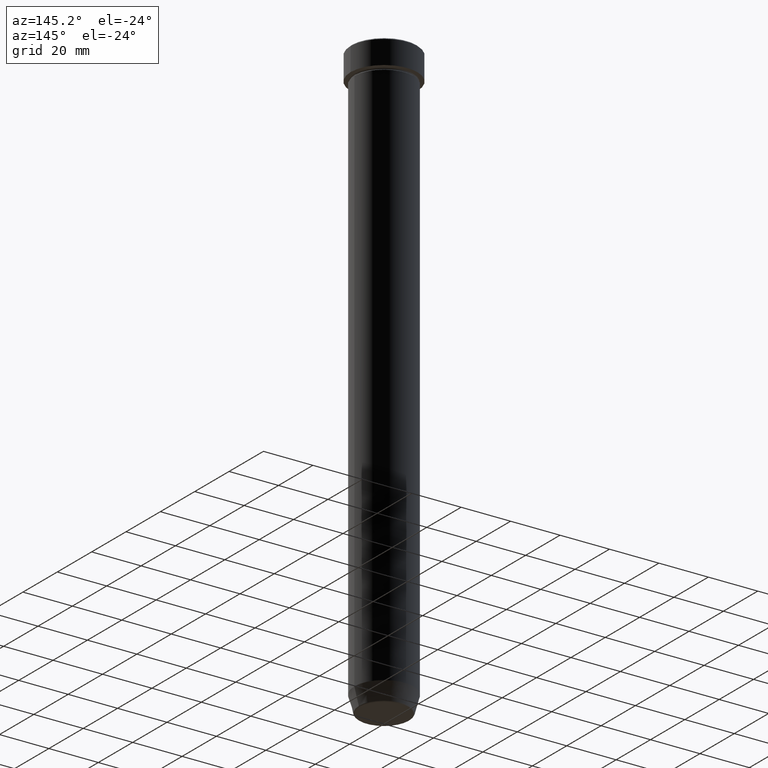
[diagram: clean part render]
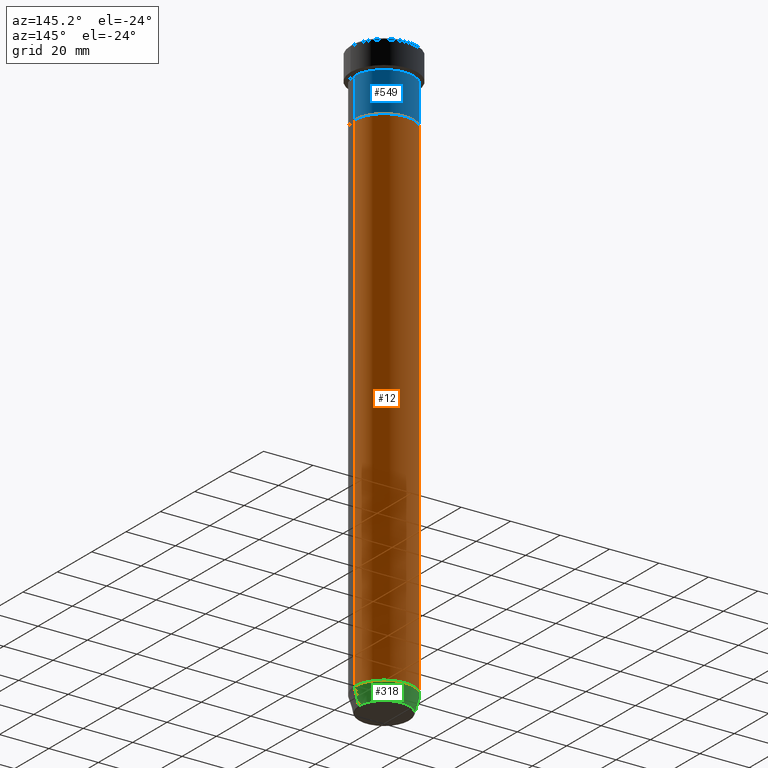
[diagram: same view with three faces highlighted in distinct colors, each labeled with its STEP entity id]
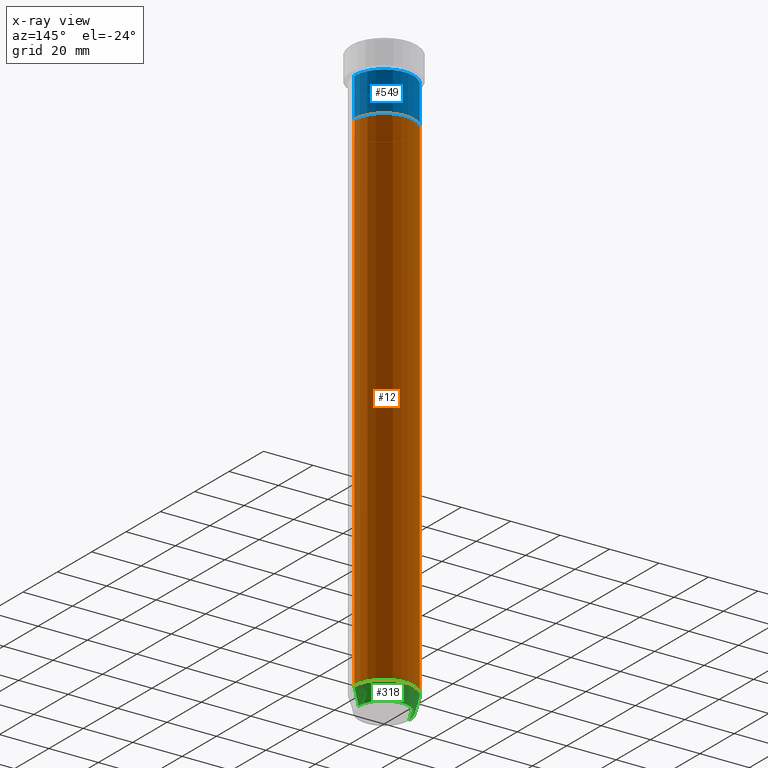
[diagram: x-ray of the same camera — body ghosted, the three highlighted faces saturated]
A machine part, auxiliary view with three faces highlighted in distinct colors.
The next image is the same camera in x-ray (body ghosted, the three faces saturated) — at least one of them is partly hidden behind the body in this view.
Their STEP definitions:

[orange] entity #12 — the highlighted cylindrical surface (edge-blend (fillet) strip) has radius 12 mm, axis along (-0, -0, 1).
#12 = ADVANCED_FACE ( 'NONE', ( #82 ), #408, .T. ) ;
#15 = ORIENTED_EDGE ( 'NONE', *, *, #308, .F. ) ;
#33 = CIRCLE ( 'NONE', #328, 12.00000000000000000 ) ;
#82 = FACE_OUTER_BOUND ( 'NONE', #317, .T. ) ;
#87 = CARTESIAN_POINT ( 'NONE',  ( 0.000000000000000000, 0.000000000000000000, 0.000000000000000000 ) ) ;
#104 = VERTEX_POINT ( 'NONE', #461 ) ;
#108 = LINE ( 'NONE', #209, #547 ) ;
#118 = VECTOR ( 'NONE', #477, 1000.000000000000000 ) ;
#131 = DIRECTION ( 'NONE',  ( -0.000000000000000000, -0.000000000000000000, 1.000000000000000000 ) ) ;
#135 = VERTEX_POINT ( 'NONE', #185 ) ;
#166 = AXIS2_PLACEMENT_3D ( 'NONE', #569, #286, #383 ) ;
#172 = EDGE_CURVE ( 'NONE', #307, #135, #33, .T. ) ;
#176 = AXIS2_PLACEMENT_3D ( 'NONE', #87, #131, #590 ) ;
#185 = CARTESIAN_POINT ( 'NONE',  ( -12.00000000000000000, 1.469576158976823947E-15, -27.00000000000000000 ) ) ;
#209 = CARTESIAN_POINT ( 'NONE',  ( 12.00000000000000000, 0.000000000000000000, 0.000000000000000000 ) ) ;
#219 = ORIENTED_EDGE ( 'NONE', *, *, #264, .T. ) ;
#228 = EDGE_CURVE ( 'NONE', #245, #135, #563, .T. ) ;
#245 = VERTEX_POINT ( 'NONE', #470 ) ;
#264 = EDGE_CURVE ( 'NONE', #104, #245, #350, .T. ) ;
#286 = DIRECTION ( 'NONE',  ( -0.000000000000000000, -0.000000000000000000, 1.000000000000000000 ) ) ;
#294 = DIRECTION ( 'NONE',  ( -0.000000000000000000, -0.000000000000000000, 1.000000000000000000 ) ) ;
#307 = VERTEX_POINT ( 'NONE', #333 ) ;
#308 = EDGE_CURVE ( 'NONE', #104, #307, #108, .T. ) ;
#317 = EDGE_LOOP ( 'NONE', ( #219, #518, #398, #15 ) ) ;
#328 = AXIS2_PLACEMENT_3D ( 'NONE', #458, #330, #512 ) ;
#330 = DIRECTION ( 'NONE',  ( -0.000000000000000000, -0.000000000000000000, 1.000000000000000000 ) ) ;
#333 = CARTESIAN_POINT ( 'NONE',  ( 12.00000000000000000, 0.000000000000000000, -27.00000000000000000 ) ) ;
#350 = CIRCLE ( 'NONE', #166, 12.00000000000000000 ) ;
#383 = DIRECTION ( 'NONE',  ( 1.000000000000000000, 0.000000000000000000, 0.000000000000000000 ) ) ;
#390 = CARTESIAN_POINT ( 'NONE',  ( -12.00000000000000000, 1.469576158976823947E-15, 0.000000000000000000 ) ) ;
#398 = ORIENTED_EDGE ( 'NONE', *, *, #172, .F. ) ;
#408 = CYLINDRICAL_SURFACE ( 'NONE', #176, 12.00000000000000000 ) ;
#458 = CARTESIAN_POINT ( 'NONE',  ( 0.000000000000000000, 0.000000000000000000, -27.00000000000000000 ) ) ;
#461 = CARTESIAN_POINT ( 'NONE',  ( 12.00000000000000000, 0.000000000000000000, -232.9999999999999716 ) ) ;
#470 = CARTESIAN_POINT ( 'NONE',  ( -12.00000000000000000, 1.469576158976823947E-15, -232.9999999999999716 ) ) ;
#477 = DIRECTION ( 'NONE',  ( -0.000000000000000000, -0.000000000000000000, 1.000000000000000000 ) ) ;
#512 = DIRECTION ( 'NONE',  ( 1.000000000000000000, 0.000000000000000000, 0.000000000000000000 ) ) ;
#518 = ORIENTED_EDGE ( 'NONE', *, *, #228, .T. ) ;
#547 = VECTOR ( 'NONE', #294, 1000.000000000000000 ) ;
#563 = LINE ( 'NONE', #390, #118 ) ;
#569 = CARTESIAN_POINT ( 'NONE',  ( 0.000000000000000000, 0.000000000000000000, -232.9999999999999716 ) ) ;
#590 = DIRECTION ( 'NONE',  ( 1.000000000000000000, 0.000000000000000000, 0.000000000000000000 ) ) ;

[blue] entity #549 — the highlighted cylindrical surface (edge-blend (fillet) strip) has radius 12 mm, axis along (-0, -0, 1).
#2 = CYLINDRICAL_SURFACE ( 'NONE', #397, 12.00000000000000000 ) ;
#18 = VECTOR ( 'NONE', #448, 1000.000000000000000 ) ;
#28 = EDGE_CURVE ( 'NONE', #340, #489, #426, .T. ) ;
#29 = ORIENTED_EDGE ( 'NONE', *, *, #364, .T. ) ;
#32 = LINE ( 'NONE', #212, #18 ) ;
#54 = CARTESIAN_POINT ( 'NONE',  ( 12.00000000000000000, 0.000000000000000000, -11.00000000000000000 ) ) ;
#60 = ORIENTED_EDGE ( 'NONE', *, *, #28, .F. ) ;
#75 = VERTEX_POINT ( 'NONE', #233 ) ;
#145 = AXIS2_PLACEMENT_3D ( 'NONE', #548, #274, #456 ) ;
#188 = CARTESIAN_POINT ( 'NONE',  ( 0.000000000000000000, 0.000000000000000000, 0.000000000000000000 ) ) ;
#212 = CARTESIAN_POINT ( 'NONE',  ( -12.00000000000000000, 1.469576158976823947E-15, 0.000000000000000000 ) ) ;
#214 = AXIS2_PLACEMENT_3D ( 'NONE', #339, #565, #516 ) ;
#220 = DIRECTION ( 'NONE',  ( -0.000000000000000000, -0.000000000000000000, 1.000000000000000000 ) ) ;
#230 = CARTESIAN_POINT ( 'NONE',  ( -12.00000000000000000, 1.469576158976823947E-15, -11.00000000000000000 ) ) ;
#233 = CARTESIAN_POINT ( 'NONE',  ( -12.00000000000000000, 1.469576158976823947E-15, -27.00000000000000000 ) ) ;
#239 = DIRECTION ( 'NONE',  ( 1.000000000000000000, 0.000000000000000000, 0.000000000000000000 ) ) ;
#274 = DIRECTION ( 'NONE',  ( -0.000000000000000000, -0.000000000000000000, 1.000000000000000000 ) ) ;
#279 = EDGE_CURVE ( 'NONE', #545, #75, #337, .T. ) ;
#315 = ORIENTED_EDGE ( 'NONE', *, *, #430, .F. ) ;
#334 = ORIENTED_EDGE ( 'NONE', *, *, #279, .T. ) ;
#337 = CIRCLE ( 'NONE', #214, 12.00000000000000000 ) ;
#339 = CARTESIAN_POINT ( 'NONE',  ( 0.000000000000000000, 0.000000000000000000, -27.00000000000000000 ) ) ;
#340 = VERTEX_POINT ( 'NONE', #54 ) ;
#364 = EDGE_CURVE ( 'NONE', #75, #489, #32, .T. ) ;
#379 = FACE_OUTER_BOUND ( 'NONE', #538, .T. ) ;
#397 = AXIS2_PLACEMENT_3D ( 'NONE', #188, #562, #239 ) ;
#426 = CIRCLE ( 'NONE', #145, 12.00000000000000000 ) ;
#430 = EDGE_CURVE ( 'NONE', #545, #340, #505, .T. ) ;
#448 = DIRECTION ( 'NONE',  ( -0.000000000000000000, -0.000000000000000000, 1.000000000000000000 ) ) ;
#454 = CARTESIAN_POINT ( 'NONE',  ( 12.00000000000000000, 0.000000000000000000, 0.000000000000000000 ) ) ;
#456 = DIRECTION ( 'NONE',  ( 1.000000000000000000, 0.000000000000000000, 0.000000000000000000 ) ) ;
#489 = VERTEX_POINT ( 'NONE', #230 ) ;
#505 = LINE ( 'NONE', #454, #597 ) ;
#516 = DIRECTION ( 'NONE',  ( 1.000000000000000000, 0.000000000000000000, 0.000000000000000000 ) ) ;
#538 = EDGE_LOOP ( 'NONE', ( #334, #29, #60, #315 ) ) ;
#545 = VERTEX_POINT ( 'NONE', #558 ) ;
#548 = CARTESIAN_POINT ( 'NONE',  ( 0.000000000000000000, 0.000000000000000000, -11.00000000000000000 ) ) ;
#549 = ADVANCED_FACE ( 'NONE', ( #379 ), #2, .T. ) ;
#558 = CARTESIAN_POINT ( 'NONE',  ( 12.00000000000000000, 0.000000000000000000, -27.00000000000000000 ) ) ;
#562 = DIRECTION ( 'NONE',  ( -0.000000000000000000, -0.000000000000000000, 1.000000000000000000 ) ) ;
#565 = DIRECTION ( 'NONE',  ( -0.000000000000000000, -0.000000000000000000, 1.000000000000000000 ) ) ;
#597 = VECTOR ( 'NONE', #220, 1000.000000000000000 ) ;

[green] entity #318 — the highlighted conical surface has half-angle 15 deg.
#1 = EDGE_CURVE ( 'NONE', #207, #245, #401, .T. ) ;
#9 = VECTOR ( 'NONE', #59, 1000.000000000000114 ) ;
#11 = DIRECTION ( 'NONE',  ( -0.000000000000000000, -0.000000000000000000, 1.000000000000000000 ) ) ;
#19 = CARTESIAN_POINT ( 'NONE',  ( 10.22365507213719482, 0.000000000000000000, -239.6294095225512422 ) ) ;
#43 = CONICAL_SURFACE ( 'NONE', #433, 10.12435565298214080, 0.2617993877991493523 ) ;
#59 = DIRECTION ( 'NONE',  ( 0.2588190451025206840, 0.000000000000000000, 0.9659258262890683122 ) ) ;
#61 = CARTESIAN_POINT ( 'NONE',  ( 0.000000000000000000, 0.000000000000000000, -240.0000000000000000 ) ) ;
#104 = VERTEX_POINT ( 'NONE', #461 ) ;
#166 = AXIS2_PLACEMENT_3D ( 'NONE', #569, #286, #383 ) ;
#192 = CARTESIAN_POINT ( 'NONE',  ( -10.22365507213719482, 1.360806402472382547E-15, -239.6294095225512422 ) ) ;
#193 = CIRCLE ( 'NONE', #369, 10.22365507213719482 ) ;
#207 = VERTEX_POINT ( 'NONE', #192 ) ;
#245 = VERTEX_POINT ( 'NONE', #470 ) ;
#247 = DIRECTION ( 'NONE',  ( 1.000000000000000000, 0.000000000000000000, 0.000000000000000000 ) ) ;
#250 = LINE ( 'NONE', #386, #9 ) ;
#258 = EDGE_CURVE ( 'NONE', #298, #104, #250, .T. ) ;
#264 = EDGE_CURVE ( 'NONE', #104, #245, #350, .T. ) ;
#286 = DIRECTION ( 'NONE',  ( -0.000000000000000000, -0.000000000000000000, 1.000000000000000000 ) ) ;
#298 = VERTEX_POINT ( 'NONE', #19 ) ;
#318 = ADVANCED_FACE ( 'NONE', ( #572 ), #43, .T. ) ;
#350 = CIRCLE ( 'NONE', #166, 12.00000000000000000 ) ;
#356 = EDGE_LOOP ( 'NONE', ( #499, #584, #391, #402 ) ) ;
#361 = VECTOR ( 'NONE', #541, 1000.000000000000114 ) ;
#369 = AXIS2_PLACEMENT_3D ( 'NONE', #409, #416, #591 ) ;
#383 = DIRECTION ( 'NONE',  ( 1.000000000000000000, 0.000000000000000000, 0.000000000000000000 ) ) ;
#386 = CARTESIAN_POINT ( 'NONE',  ( 10.12435565298214080, 0.000000000000000000, -240.0000000000000000 ) ) ;
#391 = ORIENTED_EDGE ( 'NONE', *, *, #264, .F. ) ;
#401 = LINE ( 'NONE', #493, #361 ) ;
#402 = ORIENTED_EDGE ( 'NONE', *, *, #258, .F. ) ;
#409 = CARTESIAN_POINT ( 'NONE',  ( 0.000000000000000000, 0.000000000000000000, -239.6294095225512422 ) ) ;
#416 = DIRECTION ( 'NONE',  ( -0.000000000000000000, -0.000000000000000000, 1.000000000000000000 ) ) ;
#433 = AXIS2_PLACEMENT_3D ( 'NONE', #61, #11, #247 ) ;
#461 = CARTESIAN_POINT ( 'NONE',  ( 12.00000000000000000, 0.000000000000000000, -232.9999999999999716 ) ) ;
#470 = CARTESIAN_POINT ( 'NONE',  ( -12.00000000000000000, 1.469576158976823947E-15, -232.9999999999999716 ) ) ;
#492 = EDGE_CURVE ( 'NONE', #298, #207, #193, .T. ) ;
#493 = CARTESIAN_POINT ( 'NONE',  ( -10.12435565298214080, 1.239875974385398941E-15, -240.0000000000000000 ) ) ;
#499 = ORIENTED_EDGE ( 'NONE', *, *, #492, .T. ) ;
#541 = DIRECTION ( 'NONE',  ( -0.2588190451025206840, 3.169619151431763092E-17, 0.9659258262890683122 ) ) ;
#569 = CARTESIAN_POINT ( 'NONE',  ( 0.000000000000000000, 0.000000000000000000, -232.9999999999999716 ) ) ;
#572 = FACE_OUTER_BOUND ( 'NONE', #356, .T. ) ;
#584 = ORIENTED_EDGE ( 'NONE', *, *, #1, .T. ) ;
#591 = DIRECTION ( 'NONE',  ( -1.000000000000000000, 0.000000000000000000, 0.000000000000000000 ) ) ;